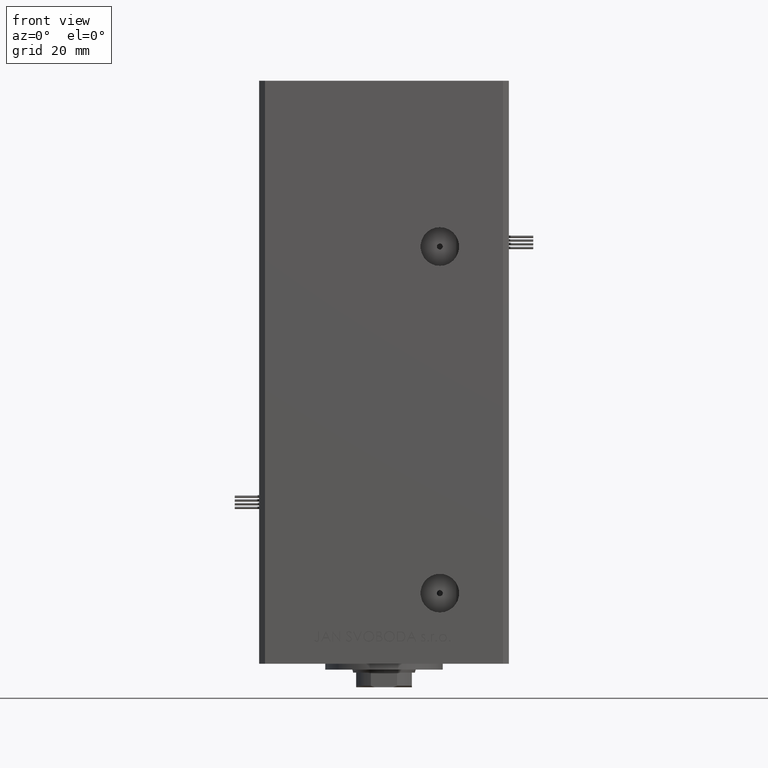
[diagram: clean part render]
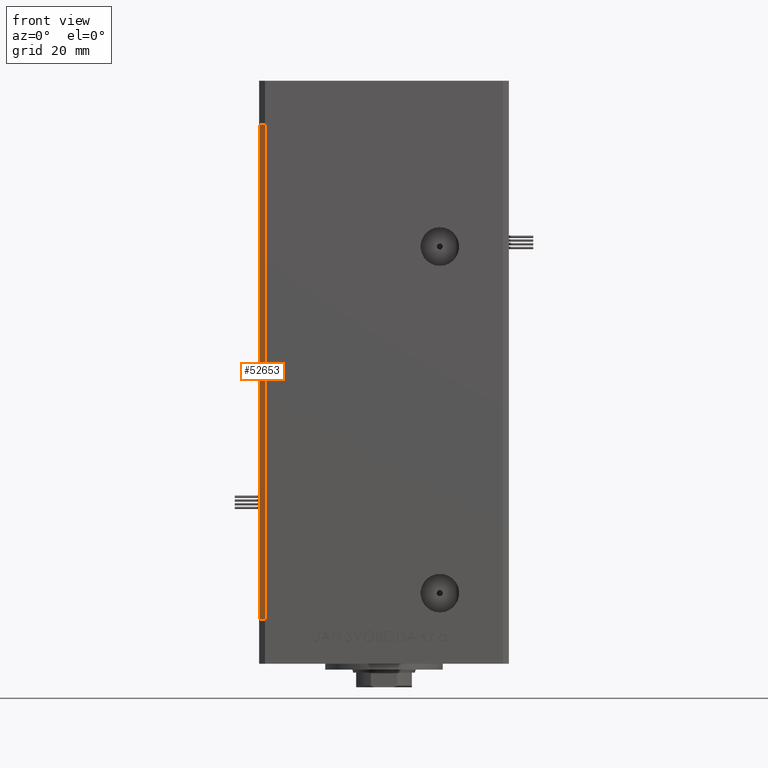
[diagram: same view with one face highlighted and labeled with its STEP entity id]
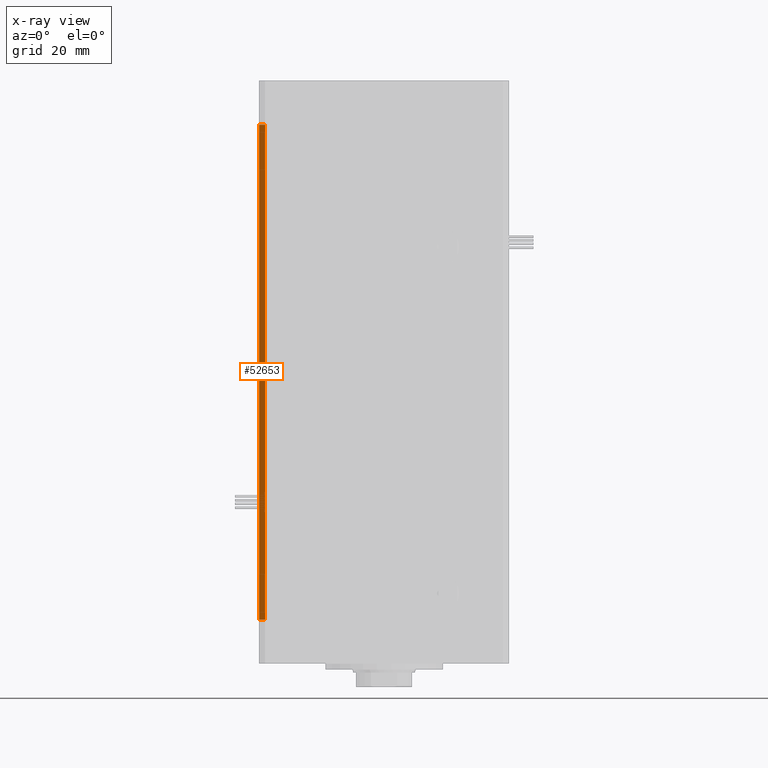
[diagram: x-ray of the same camera — body ghosted, the highlighted face saturated]
A machine part, front view. The second image highlights one B-rep face of the part: STEP entity #52653.
The next image is the same camera in x-ray: the body ghosted, the highlighted face saturated — about 0% of this face is hidden behind the body in this view.
In plain terms, the highlighted planar face has unit normal (0.7071, 0.7071, 0).
Its self-contained STEP definition (entity closure, byte-faithful):
#23 = CARTESIAN_POINT ( 'NONE',  ( -40.49999999999998579, -37.50000000000000711, 168.5000000000000000 ) ) ;
#1104 = CARTESIAN_POINT ( 'NONE',  ( -42.49999999999998579, -35.50000000000000711, 0.000000000000000000 ) ) ;
#6487 = VECTOR ( 'NONE', #46261, 1000.000000000000000 ) ;
#6621 = VERTEX_POINT ( 'NONE', #28078 ) ;
#9265 = DIRECTION ( 'NONE',  ( 0.7071067811865474617, -0.7071067811865474617, 0.000000000000000000 ) ) ;
#11475 = ORIENTED_EDGE ( 'NONE', *, *, #22544, .T. ) ;
#11883 = PLANE ( 'NONE',  #15874 ) ;
#12394 = CARTESIAN_POINT ( 'NONE',  ( -42.49999999999998579, -35.50000000000000711, 168.5000000000000000 ) ) ;
#12480 = CARTESIAN_POINT ( 'NONE',  ( -40.49999999999998579, -37.50000000000000711, 168.5000000000000000 ) ) ;
#13469 = CARTESIAN_POINT ( 'NONE',  ( -42.49999999999998579, -35.50000000000000711, 168.5000000000000000 ) ) ;
#15874 = AXIS2_PLACEMENT_3D ( 'NONE', #12394, #40132, #28145 ) ;
#16151 = ORIENTED_EDGE ( 'NONE', *, *, #47065, .F. ) ;
#17105 = DIRECTION ( 'NONE',  ( 0.7071067811865474617, -0.7071067811865474617, 0.000000000000000000 ) ) ;
#18280 = LINE ( 'NONE', #50514, #6487 ) ;
#21260 = CARTESIAN_POINT ( 'NONE',  ( -42.49999999999998579, -35.50000000000000711, 168.5000000000000000 ) ) ;
#22544 = EDGE_CURVE ( 'NONE', #42869, #34689, #18280, .T. ) ;
#22785 = EDGE_CURVE ( 'NONE', #34689, #6621, #34137, .T. ) ;
#25997 = VECTOR ( 'NONE', #9265, 1000.000000000000114 ) ;
#28078 = CARTESIAN_POINT ( 'NONE',  ( -40.49999999999998579, -37.50000000000000711, 0.000000000000000000 ) ) ;
#28145 = DIRECTION ( 'NONE',  ( -0.7071067811865474617, 0.7071067811865474617, 0.000000000000000000 ) ) ;
#29777 = VECTOR ( 'NONE', #52716, 1000.000000000000000 ) ;
#31815 = CARTESIAN_POINT ( 'NONE',  ( -42.49999999999998579, -35.50000000000000711, 0.000000000000000000 ) ) ;
#31850 = EDGE_LOOP ( 'NONE', ( #38498, #50383, #16151, #11475 ) ) ;
#33224 = EDGE_CURVE ( 'NONE', #42029, #6621, #36475, .T. ) ;
#34137 = LINE ( 'NONE', #1104, #42133 ) ;
#34689 = VERTEX_POINT ( 'NONE', #31815 ) ;
#36475 = LINE ( 'NONE', #12480, #29777 ) ;
#37243 = LINE ( 'NONE', #21260, #25997 ) ;
#38498 = ORIENTED_EDGE ( 'NONE', *, *, #22785, .T. ) ;
#40132 = DIRECTION ( 'NONE',  ( 0.7071067811865475727, 0.7071067811865475727, -0.000000000000000000 ) ) ;
#42029 = VERTEX_POINT ( 'NONE', #23 ) ;
#42133 = VECTOR ( 'NONE', #17105, 1000.000000000000114 ) ;
#42869 = VERTEX_POINT ( 'NONE', #13469 ) ;
#46261 = DIRECTION ( 'NONE',  ( -0.000000000000000000, -0.000000000000000000, -1.000000000000000000 ) ) ;
#47065 = EDGE_CURVE ( 'NONE', #42869, #42029, #37243, .T. ) ;
#48112 = FACE_OUTER_BOUND ( 'NONE', #31850, .T. ) ;
#50383 = ORIENTED_EDGE ( 'NONE', *, *, #33224, .F. ) ;
#50514 = CARTESIAN_POINT ( 'NONE',  ( -42.49999999999998579, -35.50000000000000711, 168.5000000000000000 ) ) ;
#52653 = ADVANCED_FACE ( 'NONE', ( #48112 ), #11883, .F. ) ;
#52716 = DIRECTION ( 'NONE',  ( -0.000000000000000000, -0.000000000000000000, -1.000000000000000000 ) ) ;